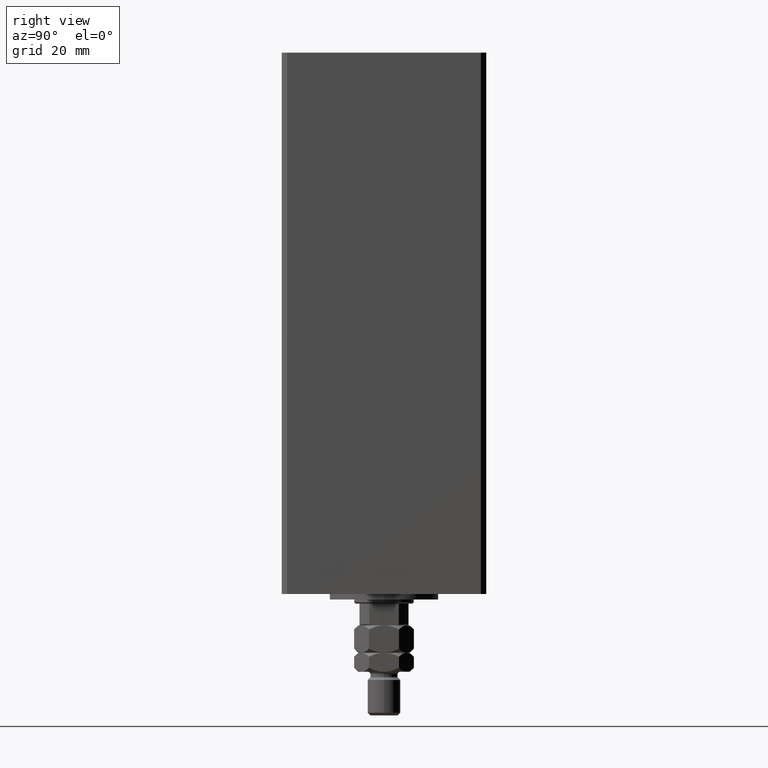
[diagram: clean part render]
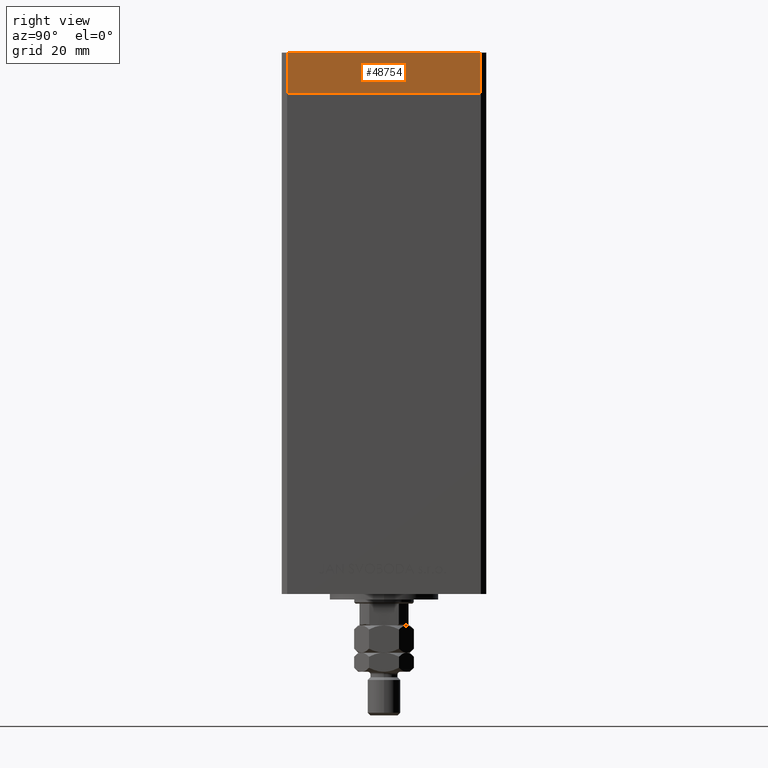
[diagram: same view with one face highlighted and labeled with its STEP entity id]
A machine part, right view. The second image highlights one B-rep face of the part: STEP entity #48754.
In plain terms, the highlighted planar face has unit normal (1, 0, 0).
Its self-contained STEP definition (entity closure, byte-faithful):
#390 = VECTOR ( 'NONE', #29994, 1000.000000000000000 ) ;
#1244 = LINE ( 'NONE', #17086, #41576 ) ;
#1673 = CARTESIAN_POINT ( 'NONE',  ( 42.50000000000000711, -35.50000000000000000, -15.00000000000000000 ) ) ;
#4318 = AXIS2_PLACEMENT_3D ( 'NONE', #4917, #39389, #24318 ) ;
#4917 = CARTESIAN_POINT ( 'NONE',  ( 42.50000000000000711, -35.50000000000000000, -15.00000000000000000 ) ) ;
#4957 = DIRECTION ( 'NONE',  ( -1.172770800660376741E-15, 1.000000000000000000, 0.000000000000000000 ) ) ;
#6969 = CARTESIAN_POINT ( 'NONE',  ( 42.50000000000000711, -35.50000000000000000, 0.000000000000000000 ) ) ;
#8638 = DIRECTION ( 'NONE',  ( 0.000000000000000000, 0.000000000000000000, 1.000000000000000000 ) ) ;
#10105 = LINE ( 'NONE', #17531, #33164 ) ;
#10222 = EDGE_CURVE ( 'NONE', #25495, #40466, #10105, .T. ) ;
#14070 = VECTOR ( 'NONE', #4957, 1000.000000000000000 ) ;
#14198 = DIRECTION ( 'NONE',  ( 0.000000000000000000, 0.000000000000000000, 1.000000000000000000 ) ) ;
#15651 = ORIENTED_EDGE ( 'NONE', *, *, #18707, .T. ) ;
#17086 = CARTESIAN_POINT ( 'NONE',  ( 42.49999999999992895, 35.50000000000000000, -15.00000000000000000 ) ) ;
#17531 = CARTESIAN_POINT ( 'NONE',  ( 42.50000000000000711, -35.50000000000000000, -15.00000000000000000 ) ) ;
#18707 = EDGE_CURVE ( 'NONE', #37535, #49940, #1244, .T. ) ;
#23859 = LINE ( 'NONE', #47109, #14070 ) ;
#24318 = DIRECTION ( 'NONE',  ( -1.172770800660376741E-15, 1.000000000000000000, 0.000000000000000000 ) ) ;
#25495 = VERTEX_POINT ( 'NONE', #1673 ) ;
#26030 = EDGE_CURVE ( 'NONE', #40466, #49940, #34067, .T. ) ;
#29663 = EDGE_LOOP ( 'NONE', ( #29739, #37310, #41230, #15651 ) ) ;
#29739 = ORIENTED_EDGE ( 'NONE', *, *, #26030, .F. ) ;
#29994 = DIRECTION ( 'NONE',  ( -1.172770800660376741E-15, 1.000000000000000000, 0.000000000000000000 ) ) ;
#31747 = FACE_OUTER_BOUND ( 'NONE', #29663, .T. ) ;
#33164 = VECTOR ( 'NONE', #14198, 1000.000000000000000 ) ;
#33580 = CARTESIAN_POINT ( 'NONE',  ( 42.50000000000000711, -35.50000000000000000, 0.000000000000000000 ) ) ;
#34067 = LINE ( 'NONE', #33580, #390 ) ;
#37310 = ORIENTED_EDGE ( 'NONE', *, *, #10222, .F. ) ;
#37535 = VERTEX_POINT ( 'NONE', #46761 ) ;
#39389 = DIRECTION ( 'NONE',  ( 1.000000000000000000, 1.172770800660376741E-15, -0.000000000000000000 ) ) ;
#40466 = VERTEX_POINT ( 'NONE', #6969 ) ;
#41230 = ORIENTED_EDGE ( 'NONE', *, *, #47422, .T. ) ;
#41576 = VECTOR ( 'NONE', #8638, 1000.000000000000000 ) ;
#46761 = CARTESIAN_POINT ( 'NONE',  ( 42.49999999999992895, 35.50000000000000000, -15.00000000000000000 ) ) ;
#46802 = PLANE ( 'NONE',  #4318 ) ;
#47109 = CARTESIAN_POINT ( 'NONE',  ( 42.50000000000000711, -35.50000000000000000, -15.00000000000000000 ) ) ;
#47422 = EDGE_CURVE ( 'NONE', #25495, #37535, #23859, .T. ) ;
#48754 = ADVANCED_FACE ( 'NONE', ( #31747 ), #46802, .T. ) ;
#49533 = CARTESIAN_POINT ( 'NONE',  ( 42.49999999999992895, 35.50000000000000000, 0.000000000000000000 ) ) ;
#49940 = VERTEX_POINT ( 'NONE', #49533 ) ;